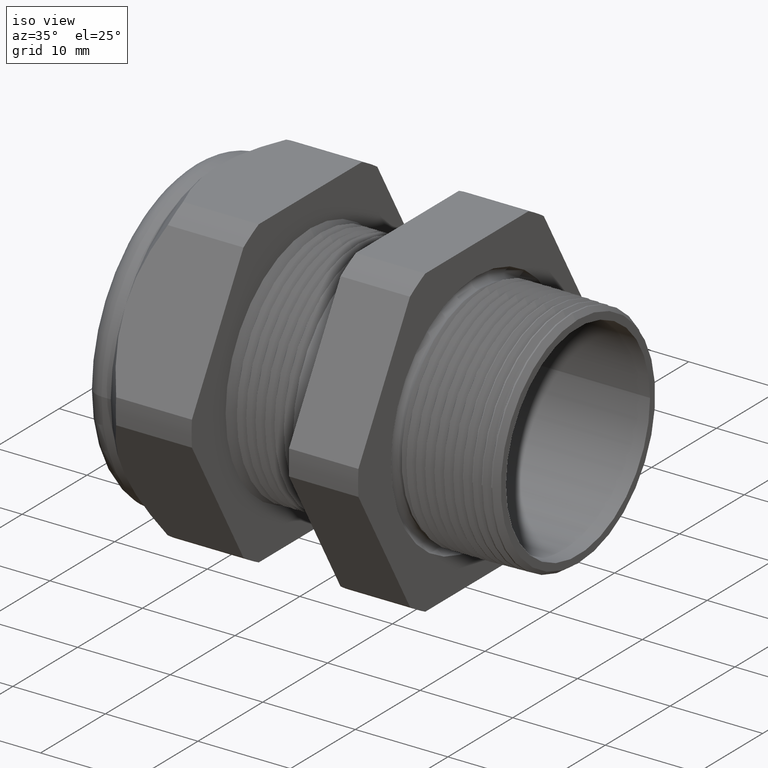
[diagram: clean part render]
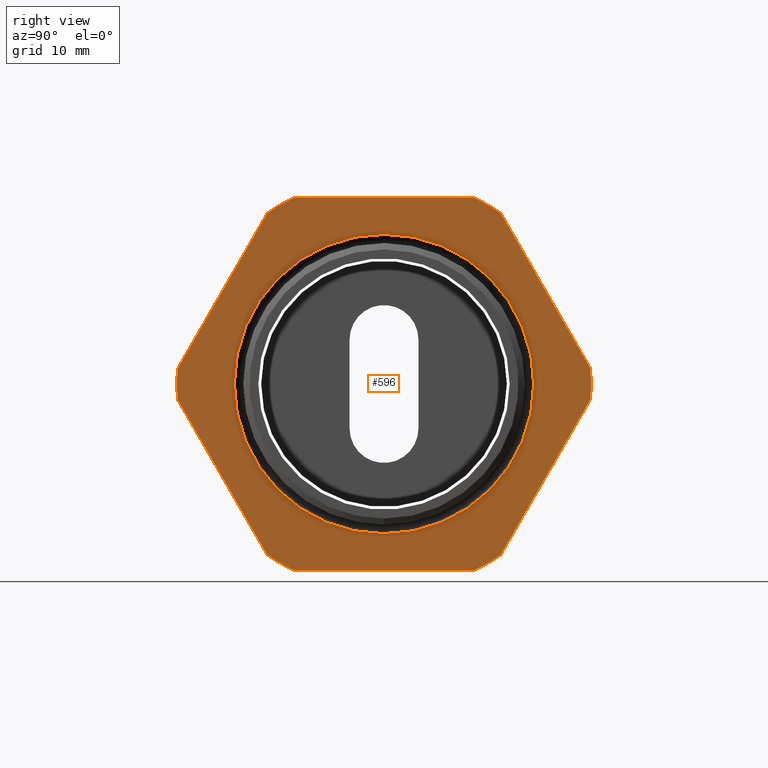
[diagram: tour spotlight — one face highlighted and labeled with its STEP entity id]
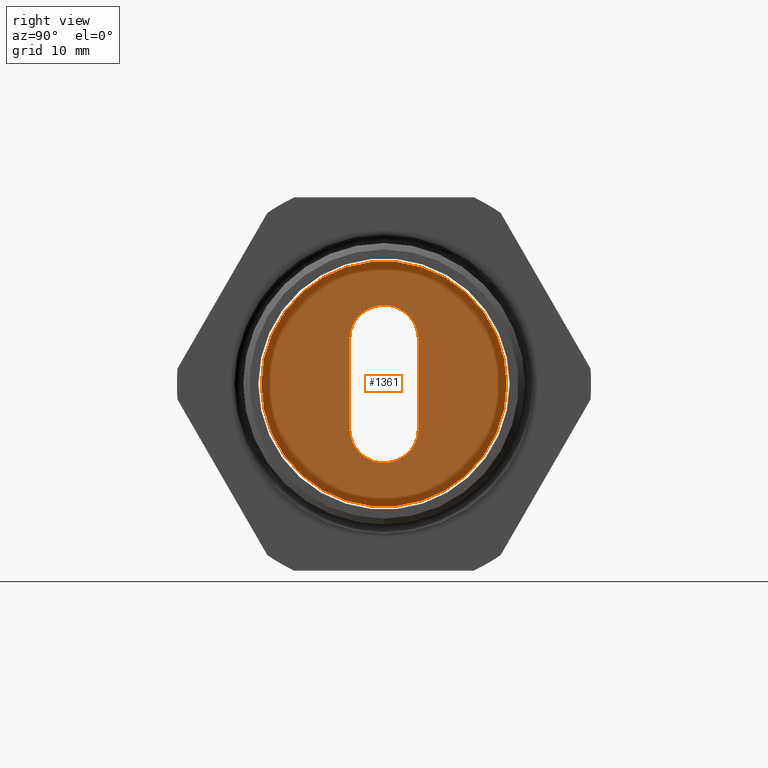
[diagram: tour spotlight — one face highlighted and labeled with its STEP entity id]
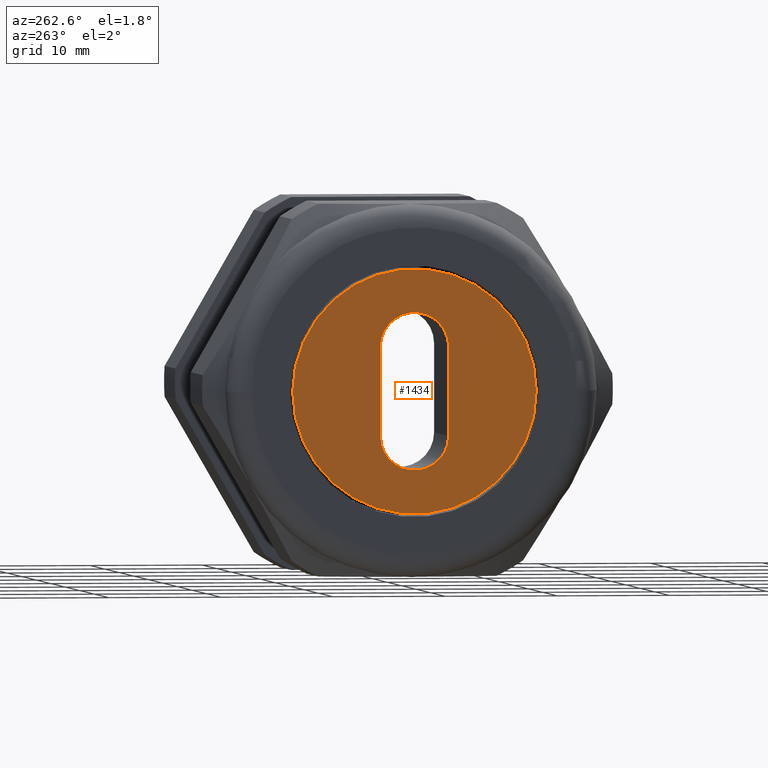
[diagram: tour spotlight — one face highlighted and labeled with its STEP entity id]
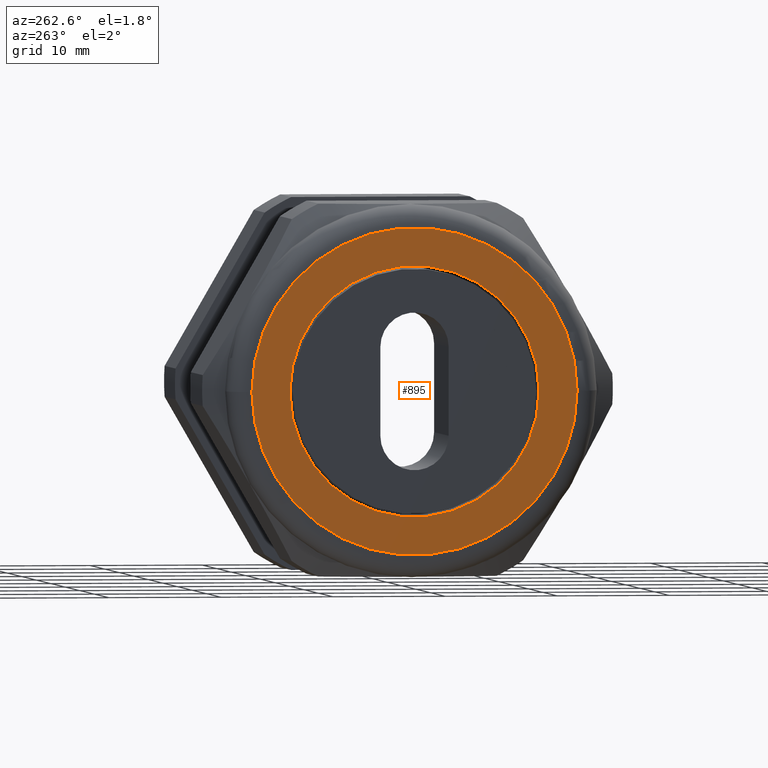
[diagram: tour spotlight — one face highlighted and labeled with its STEP entity id]
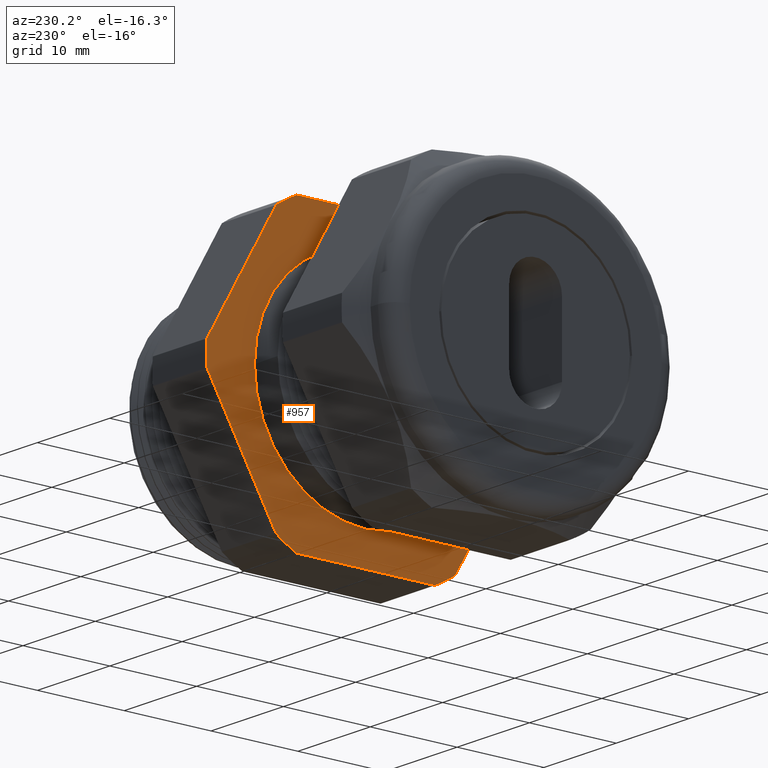
[diagram: tour spotlight — one face highlighted and labeled with its STEP entity id]
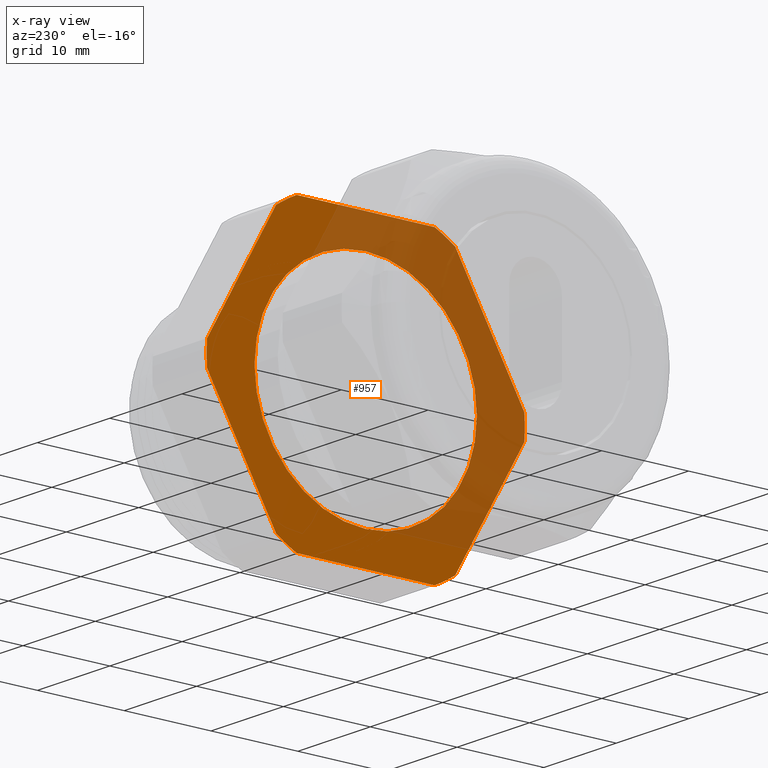
[diagram: x-ray of the same camera — body ghosted, this tour face saturated]
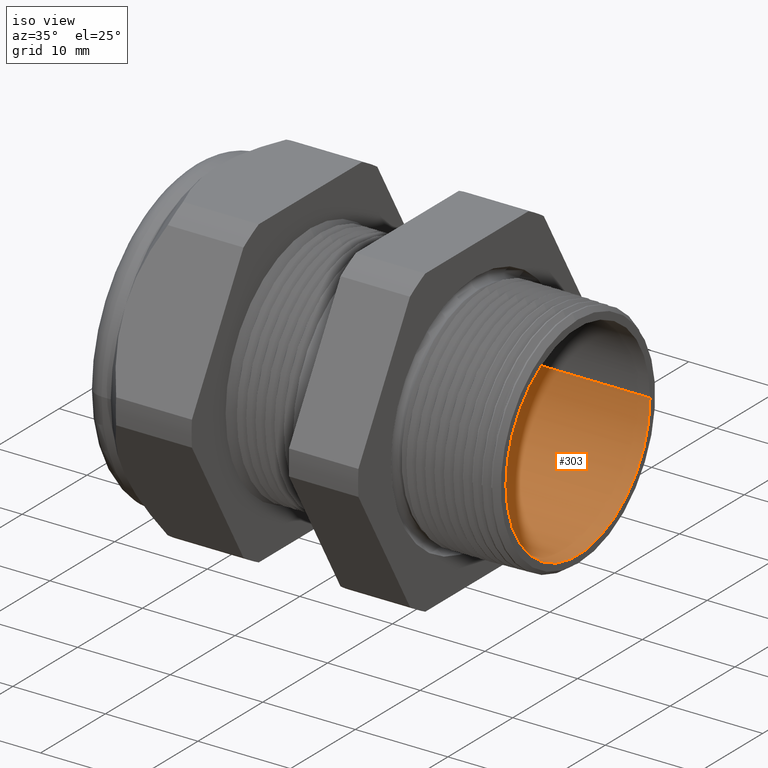
[diagram: tour spotlight — one face highlighted and labeled with its STEP entity id]
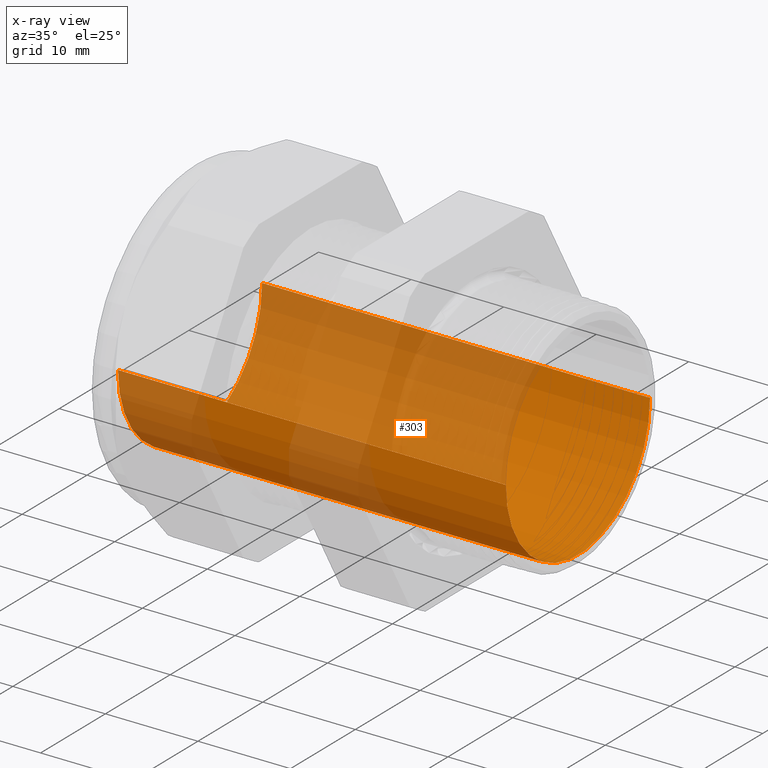
[diagram: x-ray of the same camera — body ghosted, this tour face saturated]
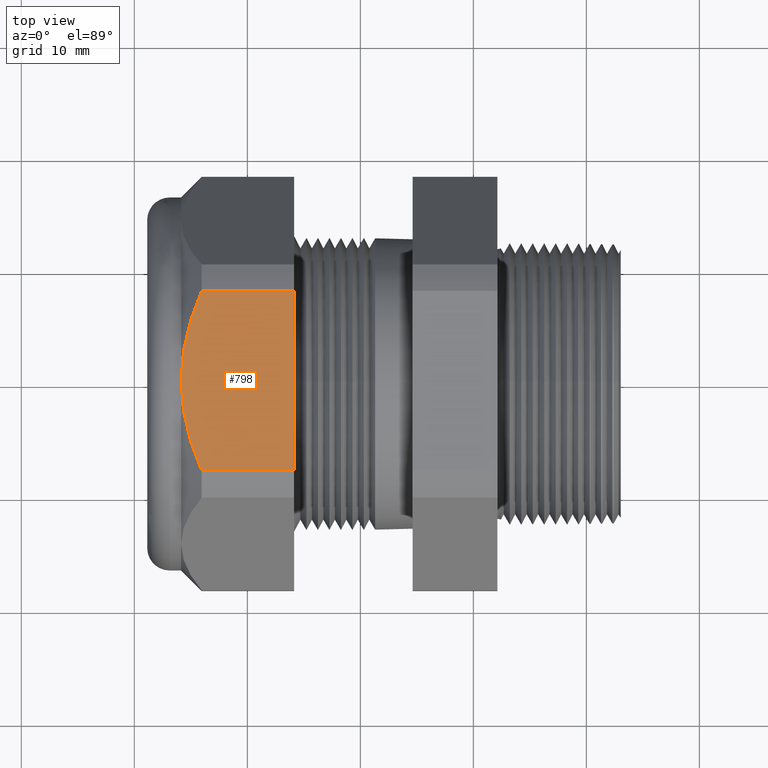
[diagram: tour spotlight — one face highlighted and labeled with its STEP entity id]
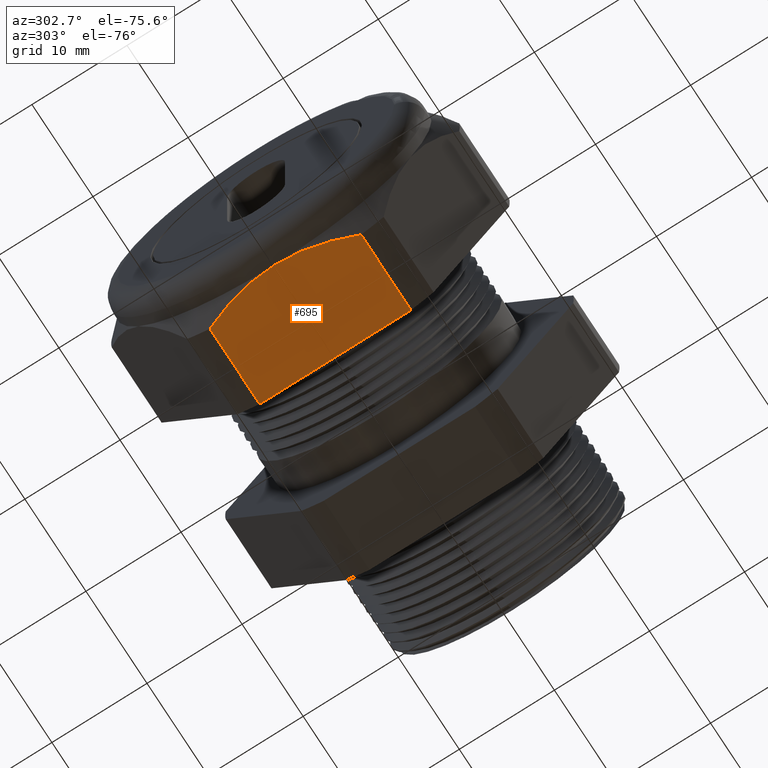
[diagram: tour spotlight — one face highlighted and labeled with its STEP entity id]
A machine part: a face-by-face anatomy tour. The part has 139 B-rep faces; the first image is the clean iso view, then the 8 largest visible faces are spotlighted one at a time (largest first), each with its STEP entity span.

Face 1 — right view, entity #596. In plain terms, the highlighted planar face has unit normal (1, -0, -0).
Definition (entity closure, byte-faithful):
#198 = VERTEX_POINT ( 'NONE', #1812 ) ;
#215 = VERTEX_POINT ( 'NONE', #1838 ) ;
#257 = EDGE_CURVE ( 'NONE', #198, #215, #1950, .T. ) ;
#509 = ORIENTED_EDGE ( 'NONE', *, *, #635, .T. ) ;
#590 = VERTEX_POINT ( 'NONE', #2607 ) ;
#591 = ORIENTED_EDGE ( 'NONE', *, *, #592, .T. ) ;
#592 = EDGE_CURVE ( 'NONE', #590, #649, #2606, .T. ) ;
#596 = ADVANCED_FACE ( 'NONE', ( #2597, #2596 ), #2595, .T. ) ;
#597 = EDGE_LOOP ( 'NONE', ( #598, #602, #605, #664, #667, #670, #673, #591, #650, #653, #656, #659 ) ) ;
#598 = ORIENTED_EDGE ( 'NONE', *, *, #599, .T. ) ;
#599 = EDGE_CURVE ( 'NONE', #600, #601, #2593, .T. ) ;
#600 = VERTEX_POINT ( 'NONE', #2586 ) ;
#601 = VERTEX_POINT ( 'NONE', #2585 ) ;
#602 = ORIENTED_EDGE ( 'NONE', *, *, #603, .T. ) ;
#603 = EDGE_CURVE ( 'NONE', #601, #604, #2646, .T. ) ;
#604 = VERTEX_POINT ( 'NONE', #2641 ) ;
#605 = ORIENTED_EDGE ( 'NONE', *, *, #606, .T. ) ;
#606 = EDGE_CURVE ( 'NONE', #604, #663, #2640, .T. ) ;
#635 = EDGE_CURVE ( 'NONE', #215, #198, #2709, .T. ) ;
#649 = VERTEX_POINT ( 'NONE', #2682 ) ;
#650 = ORIENTED_EDGE ( 'NONE', *, *, #651, .T. ) ;
#651 = EDGE_CURVE ( 'NONE', #649, #652, #2680, .T. ) ;
#652 = VERTEX_POINT ( 'NONE', #2739 ) ;
#653 = ORIENTED_EDGE ( 'NONE', *, *, #654, .T. ) ;
#654 = EDGE_CURVE ( 'NONE', #652, #655, #2738, .T. ) ;
#655 = VERTEX_POINT ( 'NONE', #2733 ) ;
#656 = ORIENTED_EDGE ( 'NONE', *, *, #657, .T. ) ;
#657 = EDGE_CURVE ( 'NONE', #655, #658, #2732, .T. ) ;
#658 = VERTEX_POINT ( 'NONE', #2728 ) ;
#659 = ORIENTED_EDGE ( 'NONE', *, *, #660, .T. ) ;
#660 = EDGE_CURVE ( 'NONE', #658, #600, #2727, .T. ) ;
#661 = EDGE_LOOP ( 'NONE', ( #662, #509 ) ) ;
#662 = ORIENTED_EDGE ( 'NONE', *, *, #257, .T. ) ;
#663 = VERTEX_POINT ( 'NONE', #2722 ) ;
#664 = ORIENTED_EDGE ( 'NONE', *, *, #665, .T. ) ;
#665 = EDGE_CURVE ( 'NONE', #663, #666, #2721, .T. ) ;
#666 = VERTEX_POINT ( 'NONE', #2716 ) ;
#667 = ORIENTED_EDGE ( 'NONE', *, *, #668, .T. ) ;
#668 = EDGE_CURVE ( 'NONE', #666, #669, #2715, .T. ) ;
#669 = VERTEX_POINT ( 'NONE', #2711 ) ;
#670 = ORIENTED_EDGE ( 'NONE', *, *, #671, .T. ) ;
#671 = EDGE_CURVE ( 'NONE', #669, #672, #2765, .T. ) ;
#672 = VERTEX_POINT ( 'NONE', #2760 ) ;
#673 = ORIENTED_EDGE ( 'NONE', *, *, #674, .T. ) ;
#674 = EDGE_CURVE ( 'NONE', #672, #590, #2759, .T. ) ;
#1812 = CARTESIAN_POINT ( 'NONE',  ( -0.3100000000000000500, 1.052269570902439300E-049, -0.5214554190084089700 ) ) ;
#1838 = CARTESIAN_POINT ( 'NONE',  ( -0.3100000000000000500, 6.385987097866900100E-017, 0.5214554190084089700 ) ) ;
#1934 = DIRECTION ( 'NONE',  ( 1.874515102111105700E-017, 0.5000000000000002200, -0.8660254037844386000 ) ) ;
#1946 = DIRECTION ( 'NONE',  ( 0.0000000000000000000, 1.000000000000000000, 0.0000000000000000000 ) ) ;
#1947 = DIRECTION ( 'NONE',  ( -1.000000000000000000, 3.749030204222210100E-017, 0.0000000000000000000 ) ) ;
#1948 = CARTESIAN_POINT ( 'NONE',  ( -0.3100000000000000500, 1.827179571382155700E-033, 0.0000000000000000000 ) ) ;
#1949 = AXIS2_PLACEMENT_3D ( 'NONE', #1948, #1947, #1946 ) ;
#1950 = CIRCLE ( 'NONE', #1949, 0.5214554190084089700 ) ;
#2585 = CARTESIAN_POINT ( 'NONE',  ( -0.3100000000000000000, 0.7194909755756818700, -0.05380507471562087600 ) ) ;
#2586 = CARTESIAN_POINT ( 'NONE',  ( -0.3100000000000000000, 0.4063420493440886800, -0.5961949252843790100 ) ) ;
#2587 = DIRECTION ( 'NONE',  ( 1.874515102111104400E-017, 0.4999999999999998300, 0.8660254037844388200 ) ) ;
#2588 = VECTOR ( 'NONE', #2587, 39.37007874015748100 ) ;
#2589 = CARTESIAN_POINT ( 'NONE',  ( -0.3100000000000000000, 0.8879165124598850100, 0.2379165124598851000 ) ) ;
#2590 = DIRECTION ( 'NONE',  ( 3.749030204222210100E-017, 1.000000000000000000, 0.0000000000000000000 ) ) ;
#2591 = DIRECTION ( 'NONE',  ( 1.000000000000000000, -3.749030204222210100E-017, -0.0000000000000000000 ) ) ;
#2592 = AXIS2_PLACEMENT_3D ( 'NONE', #2594, #2591, #2590 ) ;
#2593 = LINE ( 'NONE', #2589, #2588 ) ;
#2594 = CARTESIAN_POINT ( 'NONE',  ( -0.3100000000000000000, 1.300000000000000000, 0.0000000000000000000 ) ) ;
#2595 = PLANE ( 'NONE',  #2592 ) ;
#2596 = FACE_BOUND ( 'NONE', #661, .T. ) ;
#2597 = FACE_OUTER_BOUND ( 'NONE', #597, .T. ) ;
#2602 = DIRECTION ( 'NONE',  ( 0.0000000000000000000, 1.000000000000000000, 0.0000000000000000000 ) ) ;
#2603 = DIRECTION ( 'NONE',  ( 1.000000000000000000, -3.749030204222210100E-017, -0.0000000000000000000 ) ) ;
#2604 = CARTESIAN_POINT ( 'NONE',  ( -0.3100000000000000500, 5.293217369441609100E-017, 0.0000000000000000000 ) ) ;
#2605 = AXIS2_PLACEMENT_3D ( 'NONE', #2604, #2603, #2602 ) ;
#2606 = CIRCLE ( 'NONE', #2605, 0.7215000000000002500 ) ;
#2607 = CARTESIAN_POINT ( 'NONE',  ( -0.3100000000000000500, -0.7194909755756820900, 0.05380507471562026600 ) ) ;
#2637 = DIRECTION ( 'NONE',  ( -1.874515102111105700E-017, -0.5000000000000002200, 0.8660254037844386000 ) ) ;
#2638 = VECTOR ( 'NONE', #2637, 39.37007874015747400 ) ;
#2639 = CARTESIAN_POINT ( 'NONE',  ( -0.3100000000000000000, 0.8879165124598855700, -0.2379165124598849900 ) ) ;
#2640 = LINE ( 'NONE', #2639, #2638 ) ;
#2641 = CARTESIAN_POINT ( 'NONE',  ( -0.3100000000000000000, 0.7194909755756818700, 0.05380507471562172300 ) ) ;
#2642 = DIRECTION ( 'NONE',  ( 0.0000000000000000000, 1.000000000000000000, 0.0000000000000000000 ) ) ;
#2643 = DIRECTION ( 'NONE',  ( 1.000000000000000000, -3.749030204222210100E-017, -0.0000000000000000000 ) ) ;
#2644 = CARTESIAN_POINT ( 'NONE',  ( -0.3100000000000000500, 5.293217369441609100E-017, 0.0000000000000000000 ) ) ;
#2645 = AXIS2_PLACEMENT_3D ( 'NONE', #2644, #2643, #2642 ) ;
#2646 = CIRCLE ( 'NONE', #2645, 0.7214999999999999200 ) ;
#2678 = VECTOR ( 'NONE', #1934, 39.37007874015747400 ) ;
#2679 = CARTESIAN_POINT ( 'NONE',  ( -0.3100000000000000500, -0.2379165124598849900, -0.8879165124598854500 ) ) ;
#2680 = LINE ( 'NONE', #2679, #2678 ) ;
#2682 = CARTESIAN_POINT ( 'NONE',  ( -0.3100000000000000500, -0.7194909755756819800, -0.05380507471562112600 ) ) ;
#2705 = DIRECTION ( 'NONE',  ( 0.0000000000000000000, 1.000000000000000000, 0.0000000000000000000 ) ) ;
#2706 = DIRECTION ( 'NONE',  ( -1.000000000000000000, 3.749030204222210100E-017, 0.0000000000000000000 ) ) ;
#2707 = CARTESIAN_POINT ( 'NONE',  ( -0.3100000000000000500, 1.827179571382155700E-033, 0.0000000000000000000 ) ) ;
#2708 = AXIS2_PLACEMENT_3D ( 'NONE', #2707, #2706, #2705 ) ;
#2709 = CIRCLE ( 'NONE', #2708, 0.5214554190084089700 ) ;
#2711 = CARTESIAN_POINT ( 'NONE',  ( -0.3100000000000000500, -0.3131489262315936800, 0.6500000000000000200 ) ) ;
#2712 = DIRECTION ( 'NONE',  ( -3.749030204222210100E-017, -1.000000000000000000, 0.0000000000000000000 ) ) ;
#2713 = VECTOR ( 'NONE', #2712, 39.37007874015748100 ) ;
#2714 = CARTESIAN_POINT ( 'NONE',  ( -0.3100000000000000000, 1.300000000000000000, 0.6500000000000000200 ) ) ;
#2715 = LINE ( 'NONE', #2714, #2713 ) ;
#2716 = CARTESIAN_POINT ( 'NONE',  ( -0.3100000000000000500, 0.3131489262315935700, 0.6500000000000000200 ) ) ;
#2717 = DIRECTION ( 'NONE',  ( 0.0000000000000000000, 1.000000000000000000, 0.0000000000000000000 ) ) ;
#2718 = DIRECTION ( 'NONE',  ( 1.000000000000000000, -3.749030204222210100E-017, -0.0000000000000000000 ) ) ;
#2719 = CARTESIAN_POINT ( 'NONE',  ( -0.3100000000000000500, 5.293217369441609100E-017, 0.0000000000000000000 ) ) ;
#2720 = AXIS2_PLACEMENT_3D ( 'NONE', #2719, #2718, #2717 ) ;
#2721 = CIRCLE ( 'NONE', #2720, 0.7215000000000000300 ) ;
#2722 = CARTESIAN_POINT ( 'NONE',  ( -0.3100000000000000500, 0.4063420493440889600, 0.5961949252843789000 ) ) ;
#2723 = DIRECTION ( 'NONE',  ( 0.0000000000000000000, 1.000000000000000000, 0.0000000000000000000 ) ) ;
#2724 = DIRECTION ( 'NONE',  ( 1.000000000000000000, -3.749030204222210100E-017, -0.0000000000000000000 ) ) ;
#2725 = CARTESIAN_POINT ( 'NONE',  ( -0.3100000000000000500, 5.293217369441609100E-017, 0.0000000000000000000 ) ) ;
#2726 = AXIS2_PLACEMENT_3D ( 'NONE', #2725, #2724, #2723 ) ;
#2727 = CIRCLE ( 'NONE', #2726, 0.7215000000000000300 ) ;
#2728 = CARTESIAN_POINT ( 'NONE',  ( -0.3100000000000000500, 0.3131489262315937400, -0.6500000000000000200 ) ) ;
#2729 = DIRECTION ( 'NONE',  ( 3.749030204222210100E-017, 1.000000000000000000, 0.0000000000000000000 ) ) ;
#2730 = VECTOR ( 'NONE', #2729, 39.37007874015748100 ) ;
#2731 = CARTESIAN_POINT ( 'NONE',  ( -0.3100000000000000000, 1.300000000000000000, -0.6500000000000000200 ) ) ;
#2732 = LINE ( 'NONE', #2731, #2730 ) ;
#2733 = CARTESIAN_POINT ( 'NONE',  ( -0.3100000000000000500, -0.3131489262315936800, -0.6500000000000000200 ) ) ;
#2734 = DIRECTION ( 'NONE',  ( 0.0000000000000000000, 1.000000000000000000, 0.0000000000000000000 ) ) ;
#2735 = DIRECTION ( 'NONE',  ( 1.000000000000000000, -3.749030204222210100E-017, -0.0000000000000000000 ) ) ;
#2736 = CARTESIAN_POINT ( 'NONE',  ( -0.3100000000000000500, 5.293217369441609100E-017, 0.0000000000000000000 ) ) ;
#2737 = AXIS2_PLACEMENT_3D ( 'NONE', #2736, #2735, #2734 ) ;
#2738 = CIRCLE ( 'NONE', #2737, 0.7215000000000000300 ) ;
#2739 = CARTESIAN_POINT ( 'NONE',  ( -0.3100000000000000500, -0.4063420493440883000, -0.5961949252843792300 ) ) ;
#2756 = DIRECTION ( 'NONE',  ( -1.874515102111104400E-017, -0.4999999999999998300, -0.8660254037844388200 ) ) ;
#2757 = VECTOR ( 'NONE', #2756, 39.37007874015748100 ) ;
#2758 = CARTESIAN_POINT ( 'NONE',  ( -0.3100000000000000500, -0.2379165124598852700, 0.8879165124598849000 ) ) ;
#2759 = LINE ( 'NONE', #2758, #2757 ) ;
#2760 = CARTESIAN_POINT ( 'NONE',  ( -0.3100000000000000500, -0.4063420493440884600, 0.5961949252843791200 ) ) ;
#2761 = DIRECTION ( 'NONE',  ( 0.0000000000000000000, 1.000000000000000000, 0.0000000000000000000 ) ) ;
#2762 = DIRECTION ( 'NONE',  ( 1.000000000000000000, -3.749030204222210100E-017, -0.0000000000000000000 ) ) ;
#2763 = CARTESIAN_POINT ( 'NONE',  ( -0.3100000000000000500, 5.293217369441609100E-017, 0.0000000000000000000 ) ) ;
#2764 = AXIS2_PLACEMENT_3D ( 'NONE', #2763, #2762, #2761 ) ;
#2765 = CIRCLE ( 'NONE', #2764, 0.7215000000000000300 ) ;

Face 2 — right view, entity #1361. In plain terms, the highlighted planar face has unit normal (-1, 0, 0).
Definition (entity closure, byte-faithful):
#1356 = EDGE_CURVE ( 'NONE', #1429, #1428, #3875, .T. ) ;
#1360 = EDGE_LOOP ( 'NONE', ( #1362, #1366, #1369, #1372 ) ) ;
#1361 = ADVANCED_FACE ( 'NONE', ( #3866, #3865 ), #3864, .F. ) ;
#1362 = ORIENTED_EDGE ( 'NONE', *, *, #1363, .T. ) ;
#1363 = EDGE_CURVE ( 'NONE', #1364, #1365, #3859, .T. ) ;
#1364 = VERTEX_POINT ( 'NONE', #3855 ) ;
#1365 = VERTEX_POINT ( 'NONE', #3854 ) ;
#1366 = ORIENTED_EDGE ( 'NONE', *, *, #1367, .T. ) ;
#1367 = EDGE_CURVE ( 'NONE', #1365, #1368, #3853, .T. ) ;
#1368 = VERTEX_POINT ( 'NONE', #3910 ) ;
#1369 = ORIENTED_EDGE ( 'NONE', *, *, #1370, .T. ) ;
#1370 = EDGE_CURVE ( 'NONE', #1368, #1371, #3909, .T. ) ;
#1371 = VERTEX_POINT ( 'NONE', #3905 ) ;
#1372 = ORIENTED_EDGE ( 'NONE', *, *, #1373, .T. ) ;
#1373 = EDGE_CURVE ( 'NONE', #1371, #1364, #3904, .T. ) ;
#1427 = EDGE_CURVE ( 'NONE', #1428, #1429, #3960, .T. ) ;
#1428 = VERTEX_POINT ( 'NONE', #3955 ) ;
#1429 = VERTEX_POINT ( 'NONE', #3954 ) ;
#1443 = EDGE_LOOP ( 'NONE', ( #1444, #1445 ) ) ;
#1444 = ORIENTED_EDGE ( 'NONE', *, *, #1427, .F. ) ;
#1445 = ORIENTED_EDGE ( 'NONE', *, *, #1356, .F. ) ;
#3853 = CIRCLE ( 'NONE', #3914, 0.1200000000000000000 ) ;
#3854 = CARTESIAN_POINT ( 'NONE',  ( -1.136299212598424800, 0.1200000000000000400, -0.1550000000000000500 ) ) ;
#3855 = CARTESIAN_POINT ( 'NONE',  ( -1.136299212598424800, 0.1200000000000000400, 0.1550000000000000500 ) ) ;
#3856 = DIRECTION ( 'NONE',  ( -0.0000000000000000000, -0.0000000000000000000, -1.000000000000000000 ) ) ;
#3857 = VECTOR ( 'NONE', #3856, 39.37007874015748100 ) ;
#3858 = CARTESIAN_POINT ( 'NONE',  ( -1.136299212598424800, 0.1200000000000000400, -0.1550000000000000500 ) ) ;
#3859 = LINE ( 'NONE', #3858, #3857 ) ;
#3860 = DIRECTION ( 'NONE',  ( -3.749030204222210100E-017, -1.000000000000000000, 0.0000000000000000000 ) ) ;
#3861 = DIRECTION ( 'NONE',  ( -1.000000000000000000, 3.749030204222210100E-017, 0.0000000000000000000 ) ) ;
#3862 = AXIS2_PLACEMENT_3D ( 'NONE', #3863, #3861, #3860 ) ;
#3863 = CARTESIAN_POINT ( 'NONE',  ( -1.136299212598424800, 4.260020069065409400E-017, 0.0000000000000000000 ) ) ;
#3864 = PLANE ( 'NONE',  #3862 ) ;
#3865 = FACE_OUTER_BOUND ( 'NONE', #1443, .T. ) ;
#3866 = FACE_BOUND ( 'NONE', #1360, .T. ) ;
#3871 = DIRECTION ( 'NONE',  ( 0.0000000000000000000, -1.000000000000000000, 0.0000000000000000000 ) ) ;
#3872 = DIRECTION ( 'NONE',  ( -1.000000000000000000, 3.749030204222210100E-017, 0.0000000000000000000 ) ) ;
#3873 = CARTESIAN_POINT ( 'NONE',  ( -1.136299212598424800, 4.260020069065409400E-017, 0.0000000000000000000 ) ) ;
#3874 = AXIS2_PLACEMENT_3D ( 'NONE', #3873, #3872, #3871 ) ;
#3875 = CIRCLE ( 'NONE', #3874, 0.4277499999999995800 ) ;
#3900 = DIRECTION ( 'NONE',  ( 0.0000000000000000000, 1.000000000000000000, 0.0000000000000000000 ) ) ;
#3901 = DIRECTION ( 'NONE',  ( -1.000000000000000000, 3.749030204222210100E-017, 0.0000000000000000000 ) ) ;
#3902 = CARTESIAN_POINT ( 'NONE',  ( -1.136299212598424800, 4.270088148622307100E-017, 0.1550000000000000500 ) ) ;
#3903 = AXIS2_PLACEMENT_3D ( 'NONE', #3902, #3901, #3900 ) ;
#3904 = CIRCLE ( 'NONE', #3903, 0.1200000000000000000 ) ;
#3905 = CARTESIAN_POINT ( 'NONE',  ( -1.136299212598424800, -0.1199999999999999700, 0.1550000000000000500 ) ) ;
#3906 = DIRECTION ( 'NONE',  ( 0.0000000000000000000, 0.0000000000000000000, 1.000000000000000000 ) ) ;
#3907 = VECTOR ( 'NONE', #3906, 39.37007874015748100 ) ;
#3908 = CARTESIAN_POINT ( 'NONE',  ( -1.136299212598424800, -0.1199999999999999700, -0.1550000000000000500 ) ) ;
#3909 = LINE ( 'NONE', #3908, #3907 ) ;
#3910 = CARTESIAN_POINT ( 'NONE',  ( -1.136299212598424800, -0.1199999999999999700, -0.1550000000000000500 ) ) ;
#3911 = DIRECTION ( 'NONE',  ( 0.0000000000000000000, -1.000000000000000000, 0.0000000000000000000 ) ) ;
#3912 = DIRECTION ( 'NONE',  ( -1.000000000000000000, 3.749030204222210100E-017, 0.0000000000000000000 ) ) ;
#3913 = CARTESIAN_POINT ( 'NONE',  ( -1.136299212598424800, 4.260020069065409400E-017, -0.1550000000000000500 ) ) ;
#3914 = AXIS2_PLACEMENT_3D ( 'NONE', #3913, #3912, #3911 ) ;
#3954 = CARTESIAN_POINT ( 'NONE',  ( -1.136299212598424800, 0.4277499999999996300, 5.238426683352798200E-017 ) ) ;
#3955 = CARTESIAN_POINT ( 'NONE',  ( -1.136299212598424800, -0.4277499999999994600, 0.0000000000000000000 ) ) ;
#3956 = DIRECTION ( 'NONE',  ( 0.0000000000000000000, -1.000000000000000000, 0.0000000000000000000 ) ) ;
#3957 = DIRECTION ( 'NONE',  ( -1.000000000000000000, 3.749030204222210100E-017, 0.0000000000000000000 ) ) ;
#3958 = CARTESIAN_POINT ( 'NONE',  ( -1.136299212598424800, 4.260020069065409400E-017, 0.0000000000000000000 ) ) ;
#3959 = AXIS2_PLACEMENT_3D ( 'NONE', #3958, #3957, #3956 ) ;
#3960 = CIRCLE ( 'NONE', #3959, 0.4277499999999995800 ) ;

Face 3 — auxiliary view, entity #1434. In plain terms, the highlighted planar face has unit normal (-1, 0, 0).
Definition (entity closure, byte-faithful):
#1359 = EDGE_CURVE ( 'NONE', #1432, #1488, #3870, .T. ) ;
#1386 = ORIENTED_EDGE ( 'NONE', *, *, #1387, .F. ) ;
#1387 = EDGE_CURVE ( 'NONE', #1438, #1461, #3887, .T. ) ;
#1388 = EDGE_LOOP ( 'NONE', ( #1389, #1390 ) ) ;
#1389 = ORIENTED_EDGE ( 'NONE', *, *, #1487, .T. ) ;
#1390 = ORIENTED_EDGE ( 'NONE', *, *, #1359, .T. ) ;
#1432 = VERTEX_POINT ( 'NONE', #3949 ) ;
#1434 = ADVANCED_FACE ( 'NONE', ( #3948, #3947 ), #3946, .T. ) ;
#1435 = ORIENTED_EDGE ( 'NONE', *, *, #1436, .F. ) ;
#1436 = EDGE_CURVE ( 'NONE', #1437, #1438, #4003, .T. ) ;
#1437 = VERTEX_POINT ( 'NONE', #3998 ) ;
#1438 = VERTEX_POINT ( 'NONE', #3997 ) ;
#1439 = ORIENTED_EDGE ( 'NONE', *, *, #1440, .F. ) ;
#1440 = EDGE_CURVE ( 'NONE', #1441, #1437, #3996, .T. ) ;
#1441 = VERTEX_POINT ( 'NONE', #3992 ) ;
#1442 = ORIENTED_EDGE ( 'NONE', *, *, #1460, .F. ) ;
#1446 = EDGE_LOOP ( 'NONE', ( #1435, #1439, #1442, #1386 ) ) ;
#1460 = EDGE_CURVE ( 'NONE', #1461, #1441, #4029, .T. ) ;
#1461 = VERTEX_POINT ( 'NONE', #4020 ) ;
#1487 = EDGE_CURVE ( 'NONE', #1488, #1432, #4019, .T. ) ;
#1488 = VERTEX_POINT ( 'NONE', #4014 ) ;
#3867 = DIRECTION ( 'NONE',  ( 0.0000000000000000000, -1.000000000000000000, 0.0000000000000000000 ) ) ;
#3868 = DIRECTION ( 'NONE',  ( -1.000000000000000000, 3.749030204222210100E-017, 0.0000000000000000000 ) ) ;
#3869 = AXIS2_PLACEMENT_3D ( 'NONE', #3876, #3868, #3867 ) ;
#3870 = CIRCLE ( 'NONE', #3869, 0.4277499999999995800 ) ;
#3876 = CARTESIAN_POINT ( 'NONE',  ( -1.529999999999999800, 5.736016212459981000E-017, 0.0000000000000000000 ) ) ;
#3884 = DIRECTION ( 'NONE',  ( 0.0000000000000000000, 0.0000000000000000000, 1.000000000000000000 ) ) ;
#3885 = VECTOR ( 'NONE', #3884, 39.37007874015748100 ) ;
#3886 = CARTESIAN_POINT ( 'NONE',  ( -1.529999999999999800, -0.1199999999999999500, -0.1550000000000000500 ) ) ;
#3887 = LINE ( 'NONE', #3886, #3885 ) ;
#3945 = AXIS2_PLACEMENT_3D ( 'NONE', #4006, #4005, #4004 ) ;
#3946 = PLANE ( 'NONE',  #3945 ) ;
#3947 = FACE_OUTER_BOUND ( 'NONE', #1388, .T. ) ;
#3948 = FACE_BOUND ( 'NONE', #1446, .T. ) ;
#3949 = CARTESIAN_POINT ( 'NONE',  ( -1.529999999999999800, 0.4277499999999996300, 5.238426683352798200E-017 ) ) ;
#3992 = CARTESIAN_POINT ( 'NONE',  ( -1.529999999999999800, 0.1200000000000000500, 0.1550000000000000500 ) ) ;
#3993 = DIRECTION ( 'NONE',  ( -0.0000000000000000000, -0.0000000000000000000, -1.000000000000000000 ) ) ;
#3994 = VECTOR ( 'NONE', #3993, 39.37007874015748100 ) ;
#3995 = CARTESIAN_POINT ( 'NONE',  ( -1.529999999999999800, 0.1200000000000000500, -0.1550000000000000500 ) ) ;
#3996 = LINE ( 'NONE', #3995, #3994 ) ;
#3997 = CARTESIAN_POINT ( 'NONE',  ( -1.529999999999999800, -0.1199999999999999500, -0.1550000000000000500 ) ) ;
#3998 = CARTESIAN_POINT ( 'NONE',  ( -1.529999999999999800, 0.1200000000000000500, -0.1550000000000000500 ) ) ;
#3999 = DIRECTION ( 'NONE',  ( 0.0000000000000000000, -1.000000000000000000, 0.0000000000000000000 ) ) ;
#4000 = DIRECTION ( 'NONE',  ( -1.000000000000000000, 3.749030204222210100E-017, 0.0000000000000000000 ) ) ;
#4001 = CARTESIAN_POINT ( 'NONE',  ( -1.529999999999999800, 5.736016212459981000E-017, -0.1550000000000000500 ) ) ;
#4002 = AXIS2_PLACEMENT_3D ( 'NONE', #4001, #4000, #3999 ) ;
#4003 = CIRCLE ( 'NONE', #4002, 0.1200000000000000000 ) ;
#4004 = DIRECTION ( 'NONE',  ( -3.749030204222210100E-017, -1.000000000000000000, 0.0000000000000000000 ) ) ;
#4005 = DIRECTION ( 'NONE',  ( -1.000000000000000000, 3.749030204222210100E-017, 0.0000000000000000000 ) ) ;
#4006 = CARTESIAN_POINT ( 'NONE',  ( -1.529999999999999800, 5.736016212459981000E-017, 0.0000000000000000000 ) ) ;
#4014 = CARTESIAN_POINT ( 'NONE',  ( -1.529999999999999800, -0.4277499999999994600, 0.0000000000000000000 ) ) ;
#4015 = DIRECTION ( 'NONE',  ( 0.0000000000000000000, -1.000000000000000000, 0.0000000000000000000 ) ) ;
#4016 = DIRECTION ( 'NONE',  ( -1.000000000000000000, 3.749030204222210100E-017, 0.0000000000000000000 ) ) ;
#4017 = CARTESIAN_POINT ( 'NONE',  ( -1.529999999999999800, 5.736016212459981000E-017, 0.0000000000000000000 ) ) ;
#4018 = AXIS2_PLACEMENT_3D ( 'NONE', #4017, #4016, #4015 ) ;
#4019 = CIRCLE ( 'NONE', #4018, 0.4277499999999995800 ) ;
#4020 = CARTESIAN_POINT ( 'NONE',  ( -1.529999999999999800, -0.1199999999999999500, 0.1550000000000000500 ) ) ;
#4021 = DIRECTION ( 'NONE',  ( 0.0000000000000000000, 1.000000000000000000, 0.0000000000000000000 ) ) ;
#4022 = DIRECTION ( 'NONE',  ( -1.000000000000000000, 3.749030204222210100E-017, 0.0000000000000000000 ) ) ;
#4023 = CARTESIAN_POINT ( 'NONE',  ( -1.529999999999999800, 5.746084292016878700E-017, 0.1550000000000000500 ) ) ;
#4024 = AXIS2_PLACEMENT_3D ( 'NONE', #4023, #4022, #4021 ) ;
#4029 = CIRCLE ( 'NONE', #4024, 0.1200000000000000000 ) ;

Face 4 — auxiliary view, entity #895. In plain terms, the highlighted planar face has unit normal (-1, 0, 0).
Definition (entity closure, byte-faithful):
#202 = VERTEX_POINT ( 'NONE', #1809 ) ;
#205 = EDGE_CURVE ( 'NONE', #206, #202, #1864, .T. ) ;
#206 = VERTEX_POINT ( 'NONE', #1859 ) ;
#306 = EDGE_CURVE ( 'NONE', #307, #308, #2043, .T. ) ;
#307 = VERTEX_POINT ( 'NONE', #2034 ) ;
#308 = VERTEX_POINT ( 'NONE', #2033 ) ;
#853 = EDGE_CURVE ( 'NONE', #308, #307, #3162, .T. ) ;
#895 = ADVANCED_FACE ( 'NONE', ( #3196, #3195 ), #3202, .T. ) ;
#896 = EDGE_LOOP ( 'NONE', ( #897, #898 ) ) ;
#897 = ORIENTED_EDGE ( 'NONE', *, *, #205, .T. ) ;
#898 = ORIENTED_EDGE ( 'NONE', *, *, #899, .T. ) ;
#899 = EDGE_CURVE ( 'NONE', #202, #206, #3250, .T. ) ;
#900 = EDGE_LOOP ( 'NONE', ( #901, #902 ) ) ;
#901 = ORIENTED_EDGE ( 'NONE', *, *, #853, .T. ) ;
#902 = ORIENTED_EDGE ( 'NONE', *, *, #306, .T. ) ;
#1809 = CARTESIAN_POINT ( 'NONE',  ( -1.529999999999999800, 0.5712598425196849800, 7.478059785344665900E-017 ) ) ;
#1859 = CARTESIAN_POINT ( 'NONE',  ( -1.529999999999999800, -0.5712598425196852000, 0.0000000000000000000 ) ) ;
#1860 = DIRECTION ( 'NONE',  ( 0.0000000000000000000, -1.000000000000000000, 0.0000000000000000000 ) ) ;
#1861 = DIRECTION ( 'NONE',  ( -1.000000000000000000, 3.749030204222210100E-017, 0.0000000000000000000 ) ) ;
#1862 = CARTESIAN_POINT ( 'NONE',  ( -1.529999999999999800, -1.129056135740169600E-016, 0.0000000000000000000 ) ) ;
#1863 = AXIS2_PLACEMENT_3D ( 'NONE', #1862, #1861, #1860 ) ;
#1864 = CIRCLE ( 'NONE', #1863, 0.5712598425196850900 ) ;
#2033 = CARTESIAN_POINT ( 'NONE',  ( -1.529999999999999800, 0.4377499999999996400, 0.0000000000000000000 ) ) ;
#2034 = CARTESIAN_POINT ( 'NONE',  ( -1.529999999999999800, -0.4377499999999999200, 5.360891363267537000E-017 ) ) ;
#2035 = DIRECTION ( 'NONE',  ( 0.0000000000000000000, 1.000000000000000000, 0.0000000000000000000 ) ) ;
#2036 = DIRECTION ( 'NONE',  ( 1.000000000000000000, -3.749030204222210100E-017, -0.0000000000000000000 ) ) ;
#2037 = CARTESIAN_POINT ( 'NONE',  ( -1.529999999999999800, -1.129056135740169600E-016, 0.0000000000000000000 ) ) ;
#2038 = AXIS2_PLACEMENT_3D ( 'NONE', #2037, #2036, #2035 ) ;
#2043 = CIRCLE ( 'NONE', #2038, 0.4377499999999998100 ) ;
#3154 = DIRECTION ( 'NONE',  ( 0.0000000000000000000, 1.000000000000000000, 0.0000000000000000000 ) ) ;
#3155 = DIRECTION ( 'NONE',  ( 1.000000000000000000, -3.749030204222210100E-017, -0.0000000000000000000 ) ) ;
#3156 = CARTESIAN_POINT ( 'NONE',  ( -1.529999999999999800, -1.129056135740169600E-016, 0.0000000000000000000 ) ) ;
#3157 = AXIS2_PLACEMENT_3D ( 'NONE', #3156, #3155, #3154 ) ;
#3162 = CIRCLE ( 'NONE', #3157, 0.4377499999999998100 ) ;
#3194 = AXIS2_PLACEMENT_3D ( 'NONE', #3253, #3252, #3251 ) ;
#3195 = FACE_BOUND ( 'NONE', #900, .T. ) ;
#3196 = FACE_OUTER_BOUND ( 'NONE', #896, .T. ) ;
#3202 = PLANE ( 'NONE',  #3194 ) ;
#3247 = DIRECTION ( 'NONE',  ( 0.0000000000000000000, -1.000000000000000000, 0.0000000000000000000 ) ) ;
#3248 = DIRECTION ( 'NONE',  ( -1.000000000000000000, 3.749030204222210100E-017, 0.0000000000000000000 ) ) ;
#3249 = AXIS2_PLACEMENT_3D ( 'NONE', #3254, #3248, #3247 ) ;
#3250 = CIRCLE ( 'NONE', #3249, 0.5712598425196850900 ) ;
#3251 = DIRECTION ( 'NONE',  ( -3.749030204222210100E-017, -1.000000000000000000, 0.0000000000000000000 ) ) ;
#3252 = DIRECTION ( 'NONE',  ( -1.000000000000000000, 3.749030204222210100E-017, 0.0000000000000000000 ) ) ;
#3253 = CARTESIAN_POINT ( 'NONE',  ( -1.529999999999999800, 0.6499999999999999100, 0.0000000000000000000 ) ) ;
#3254 = CARTESIAN_POINT ( 'NONE',  ( -1.529999999999999800, -1.129056135740169600E-016, 0.0000000000000000000 ) ) ;

Face 5 — auxiliary view, entity #957. An x-ray twin of the same camera follows (body ghosted, this face saturated) — the face is partly hidden behind the body. In plain terms, the highlighted planar face has unit normal (-1, 0, 0).
Definition (entity closure, byte-faithful):
#260 = EDGE_CURVE ( 'NONE', #261, #262, #1945, .T. ) ;
#261 = VERTEX_POINT ( 'NONE', #1940 ) ;
#262 = VERTEX_POINT ( 'NONE', #1939 ) ;
#879 = ORIENTED_EDGE ( 'NONE', *, *, #260, .T. ) ;
#880 = EDGE_LOOP ( 'NONE', ( #881, #885, #888, #943, #946, #949, #952, #955, #929, #932, #935, #938 ) ) ;
#881 = ORIENTED_EDGE ( 'NONE', *, *, #882, .T. ) ;
#882 = EDGE_CURVE ( 'NONE', #883, #884, #3225, .T. ) ;
#883 = VERTEX_POINT ( 'NONE', #3221 ) ;
#884 = VERTEX_POINT ( 'NONE', #3220 ) ;
#885 = ORIENTED_EDGE ( 'NONE', *, *, #886, .T. ) ;
#886 = EDGE_CURVE ( 'NONE', #884, #887, #3219, .T. ) ;
#887 = VERTEX_POINT ( 'NONE', #3214 ) ;
#888 = ORIENTED_EDGE ( 'NONE', *, *, #942, .T. ) ;
#889 = VERTEX_POINT ( 'NONE', #3213 ) ;
#928 = EDGE_CURVE ( 'NONE', #954, #956, #3270, .T. ) ;
#929 = ORIENTED_EDGE ( 'NONE', *, *, #930, .T. ) ;
#930 = EDGE_CURVE ( 'NONE', #956, #931, #3265, .T. ) ;
#931 = VERTEX_POINT ( 'NONE', #3261 ) ;
#932 = ORIENTED_EDGE ( 'NONE', *, *, #933, .T. ) ;
#933 = EDGE_CURVE ( 'NONE', #931, #934, #3260, .T. ) ;
#934 = VERTEX_POINT ( 'NONE', #3255 ) ;
#935 = ORIENTED_EDGE ( 'NONE', *, *, #936, .T. ) ;
#936 = EDGE_CURVE ( 'NONE', #934, #937, #3318, .T. ) ;
#937 = VERTEX_POINT ( 'NONE', #3314 ) ;
#938 = ORIENTED_EDGE ( 'NONE', *, *, #939, .T. ) ;
#939 = EDGE_CURVE ( 'NONE', #937, #883, #3313, .T. ) ;
#942 = EDGE_CURVE ( 'NONE', #887, #889, #3302, .T. ) ;
#943 = ORIENTED_EDGE ( 'NONE', *, *, #944, .T. ) ;
#944 = EDGE_CURVE ( 'NONE', #889, #945, #3298, .T. ) ;
#945 = VERTEX_POINT ( 'NONE', #3293 ) ;
#946 = ORIENTED_EDGE ( 'NONE', *, *, #947, .T. ) ;
#947 = EDGE_CURVE ( 'NONE', #945, #948, #3292, .T. ) ;
#948 = VERTEX_POINT ( 'NONE', #3288 ) ;
#949 = ORIENTED_EDGE ( 'NONE', *, *, #950, .T. ) ;
#950 = EDGE_CURVE ( 'NONE', #948, #951, #3351, .T. ) ;
#951 = VERTEX_POINT ( 'NONE', #3346 ) ;
#952 = ORIENTED_EDGE ( 'NONE', *, *, #953, .T. ) ;
#953 = EDGE_CURVE ( 'NONE', #951, #954, #3345, .T. ) ;
#954 = VERTEX_POINT ( 'NONE', #3341 ) ;
#955 = ORIENTED_EDGE ( 'NONE', *, *, #928, .T. ) ;
#956 = VERTEX_POINT ( 'NONE', #3340 ) ;
#957 = ADVANCED_FACE ( 'NONE', ( #3339, #3338 ), #3337, .T. ) ;
#958 = EDGE_LOOP ( 'NONE', ( #959, #879 ) ) ;
#959 = ORIENTED_EDGE ( 'NONE', *, *, #960, .T. ) ;
#960 = EDGE_CURVE ( 'NONE', #262, #261, #3336, .T. ) ;
#1939 = CARTESIAN_POINT ( 'NONE',  ( -0.6052755905511810800, -0.5041874824638757900, 0.0000000000000000000 ) ) ;
#1940 = CARTESIAN_POINT ( 'NONE',  ( -0.6052755905511810800, 0.5041874824638754600, 6.195445630291319000E-017 ) ) ;
#1941 = DIRECTION ( 'NONE',  ( 0.0000000000000000000, 1.000000000000000000, 0.0000000000000000000 ) ) ;
#1942 = DIRECTION ( 'NONE',  ( 1.000000000000000000, -3.749030204222210100E-017, -0.0000000000000000000 ) ) ;
#1943 = CARTESIAN_POINT ( 'NONE',  ( -0.6052755905511810800, -1.475738109900686300E-016, 0.0000000000000000000 ) ) ;
#1944 = AXIS2_PLACEMENT_3D ( 'NONE', #1943, #1942, #1941 ) ;
#1945 = CIRCLE ( 'NONE', #1944, 0.5041874824638756800 ) ;
#3213 = CARTESIAN_POINT ( 'NONE',  ( -0.6052755905511810800, 0.4063420493440887400, -0.5961949252843789000 ) ) ;
#3214 = CARTESIAN_POINT ( 'NONE',  ( -0.6052755905511810800, 0.7194909755756818700, -0.05380507471562089700 ) ) ;
#3215 = DIRECTION ( 'NONE',  ( 0.0000000000000000000, -1.000000000000000000, 0.0000000000000000000 ) ) ;
#3216 = DIRECTION ( 'NONE',  ( -1.000000000000000000, 3.749030204222210100E-017, 0.0000000000000000000 ) ) ;
#3217 = CARTESIAN_POINT ( 'NONE',  ( -0.6052755905511810800, 5.293217369441609100E-017, 0.0000000000000000000 ) ) ;
#3218 = AXIS2_PLACEMENT_3D ( 'NONE', #3217, #3216, #3215 ) ;
#3219 = CIRCLE ( 'NONE', #3218, 0.7214999999999999200 ) ;
#3220 = CARTESIAN_POINT ( 'NONE',  ( -0.6052755905511810800, 0.7194909755756818700, 0.05380507471562172300 ) ) ;
#3221 = CARTESIAN_POINT ( 'NONE',  ( -0.6052755905511810800, 0.4063420493440889600, 0.5961949252843789000 ) ) ;
#3222 = DIRECTION ( 'NONE',  ( 1.874515102111105700E-017, 0.5000000000000002200, -0.8660254037844386000 ) ) ;
#3223 = VECTOR ( 'NONE', #3222, 39.37007874015747400 ) ;
#3224 = CARTESIAN_POINT ( 'NONE',  ( -0.6052755905511810800, 0.8879165124598854500, -0.2379165124598848500 ) ) ;
#3225 = LINE ( 'NONE', #3224, #3223 ) ;
#3255 = CARTESIAN_POINT ( 'NONE',  ( -0.6052755905511810800, -0.3131489262315936800, 0.6500000000000000200 ) ) ;
#3256 = DIRECTION ( 'NONE',  ( 0.0000000000000000000, -1.000000000000000000, 0.0000000000000000000 ) ) ;
#3257 = DIRECTION ( 'NONE',  ( -1.000000000000000000, 3.749030204222210100E-017, 0.0000000000000000000 ) ) ;
#3258 = CARTESIAN_POINT ( 'NONE',  ( -0.6052755905511810800, 5.293217369441609100E-017, 0.0000000000000000000 ) ) ;
#3259 = AXIS2_PLACEMENT_3D ( 'NONE', #3258, #3257, #3256 ) ;
#3260 = CIRCLE ( 'NONE', #3259, 0.7215000000000000300 ) ;
#3261 = CARTESIAN_POINT ( 'NONE',  ( -0.6052755905511810800, -0.4063420493440884600, 0.5961949252843791200 ) ) ;
#3262 = DIRECTION ( 'NONE',  ( 1.874515102111104400E-017, 0.4999999999999998300, 0.8660254037844388200 ) ) ;
#3263 = VECTOR ( 'NONE', #3262, 39.37007874015748100 ) ;
#3264 = CARTESIAN_POINT ( 'NONE',  ( -0.6052755905511811900, -0.2379165124598852700, 0.8879165124598847900 ) ) ;
#3265 = LINE ( 'NONE', #3264, #3263 ) ;
#3266 = DIRECTION ( 'NONE',  ( 0.0000000000000000000, -1.000000000000000000, 0.0000000000000000000 ) ) ;
#3267 = DIRECTION ( 'NONE',  ( -1.000000000000000000, 3.749030204222210100E-017, 0.0000000000000000000 ) ) ;
#3268 = CARTESIAN_POINT ( 'NONE',  ( -0.6052755905511810800, 5.293217369441609100E-017, 0.0000000000000000000 ) ) ;
#3269 = AXIS2_PLACEMENT_3D ( 'NONE', #3268, #3267, #3266 ) ;
#3270 = CIRCLE ( 'NONE', #3269, 0.7215000000000002500 ) ;
#3288 = CARTESIAN_POINT ( 'NONE',  ( -0.6052755905511810800, -0.3131489262315936800, -0.6500000000000000200 ) ) ;
#3289 = DIRECTION ( 'NONE',  ( -3.749030204222210100E-017, -1.000000000000000000, 0.0000000000000000000 ) ) ;
#3290 = VECTOR ( 'NONE', #3289, 39.37007874015748100 ) ;
#3291 = CARTESIAN_POINT ( 'NONE',  ( -0.6052755905511810800, 1.299999999999999800, -0.6500000000000000200 ) ) ;
#3292 = LINE ( 'NONE', #3291, #3290 ) ;
#3293 = CARTESIAN_POINT ( 'NONE',  ( -0.6052755905511810800, 0.3131489262315937400, -0.6500000000000000200 ) ) ;
#3294 = DIRECTION ( 'NONE',  ( 0.0000000000000000000, -1.000000000000000000, 0.0000000000000000000 ) ) ;
#3295 = DIRECTION ( 'NONE',  ( -1.000000000000000000, 3.749030204222210100E-017, 0.0000000000000000000 ) ) ;
#3296 = CARTESIAN_POINT ( 'NONE',  ( -0.6052755905511810800, 5.293217369441609100E-017, 0.0000000000000000000 ) ) ;
#3297 = AXIS2_PLACEMENT_3D ( 'NONE', #3296, #3295, #3294 ) ;
#3298 = CIRCLE ( 'NONE', #3297, 0.7215000000000000300 ) ;
#3299 = DIRECTION ( 'NONE',  ( -1.874515102111104400E-017, -0.4999999999999998300, -0.8660254037844388200 ) ) ;
#3300 = VECTOR ( 'NONE', #3299, 39.37007874015748100 ) ;
#3301 = CARTESIAN_POINT ( 'NONE',  ( -0.6052755905511810800, 0.8879165124598850100, 0.2379165124598849600 ) ) ;
#3302 = LINE ( 'NONE', #3301, #3300 ) ;
#3309 = DIRECTION ( 'NONE',  ( 0.0000000000000000000, -1.000000000000000000, 0.0000000000000000000 ) ) ;
#3310 = DIRECTION ( 'NONE',  ( -1.000000000000000000, 3.749030204222210100E-017, 0.0000000000000000000 ) ) ;
#3311 = CARTESIAN_POINT ( 'NONE',  ( -0.6052755905511810800, 5.293217369441609100E-017, 0.0000000000000000000 ) ) ;
#3312 = AXIS2_PLACEMENT_3D ( 'NONE', #3311, #3310, #3309 ) ;
#3313 = CIRCLE ( 'NONE', #3312, 0.7215000000000000300 ) ;
#3314 = CARTESIAN_POINT ( 'NONE',  ( -0.6052755905511810800, 0.3131489262315935700, 0.6500000000000000200 ) ) ;
#3315 = DIRECTION ( 'NONE',  ( 3.749030204222210100E-017, 1.000000000000000000, -0.0000000000000000000 ) ) ;
#3316 = VECTOR ( 'NONE', #3315, 39.37007874015748100 ) ;
#3317 = CARTESIAN_POINT ( 'NONE',  ( -0.6052755905511810800, 1.299999999999999800, 0.6500000000000000200 ) ) ;
#3318 = LINE ( 'NONE', #3317, #3316 ) ;
#3328 = DIRECTION ( 'NONE',  ( 0.0000000000000000000, 1.000000000000000000, 0.0000000000000000000 ) ) ;
#3329 = DIRECTION ( 'NONE',  ( 1.000000000000000000, -3.749030204222210100E-017, -0.0000000000000000000 ) ) ;
#3330 = CARTESIAN_POINT ( 'NONE',  ( -0.6052755905511810800, -1.475738109900686300E-016, 0.0000000000000000000 ) ) ;
#3331 = AXIS2_PLACEMENT_3D ( 'NONE', #3330, #3329, #3328 ) ;
#3332 = DIRECTION ( 'NONE',  ( -3.749030204222210100E-017, -1.000000000000000000, 0.0000000000000000000 ) ) ;
#3333 = DIRECTION ( 'NONE',  ( -1.000000000000000000, 3.749030204222210100E-017, 0.0000000000000000000 ) ) ;
#3334 = CARTESIAN_POINT ( 'NONE',  ( -0.6052755905511810800, 1.299999999999999800, 0.0000000000000000000 ) ) ;
#3335 = AXIS2_PLACEMENT_3D ( 'NONE', #3334, #3333, #3332 ) ;
#3336 = CIRCLE ( 'NONE', #3331, 0.5041874824638756800 ) ;
#3337 = PLANE ( 'NONE',  #3335 ) ;
#3338 = FACE_OUTER_BOUND ( 'NONE', #880, .T. ) ;
#3339 = FACE_BOUND ( 'NONE', #958, .T. ) ;
#3340 = CARTESIAN_POINT ( 'NONE',  ( -0.6052755905511810800, -0.7194909755756820900, 0.05380507471562026600 ) ) ;
#3341 = CARTESIAN_POINT ( 'NONE',  ( -0.6052755905511810800, -0.7194909755756819800, -0.05380507471562112600 ) ) ;
#3342 = DIRECTION ( 'NONE',  ( -1.874515102111105700E-017, -0.5000000000000002200, 0.8660254037844386000 ) ) ;
#3343 = VECTOR ( 'NONE', #3342, 39.37007874015747400 ) ;
#3344 = CARTESIAN_POINT ( 'NONE',  ( -0.6052755905511811900, -0.2379165124598849900, -0.8879165124598853400 ) ) ;
#3345 = LINE ( 'NONE', #3344, #3343 ) ;
#3346 = CARTESIAN_POINT ( 'NONE',  ( -0.6052755905511810800, -0.4063420493440883000, -0.5961949252843792300 ) ) ;
#3347 = DIRECTION ( 'NONE',  ( 0.0000000000000000000, -1.000000000000000000, 0.0000000000000000000 ) ) ;
#3348 = DIRECTION ( 'NONE',  ( -1.000000000000000000, 3.749030204222210100E-017, 0.0000000000000000000 ) ) ;
#3349 = CARTESIAN_POINT ( 'NONE',  ( -0.6052755905511810800, 5.293217369441609100E-017, 0.0000000000000000000 ) ) ;
#3350 = AXIS2_PLACEMENT_3D ( 'NONE', #3349, #3348, #3347 ) ;
#3351 = CIRCLE ( 'NONE', #3350, 0.7215000000000000300 ) ;

Face 6 — iso view, entity #303. An x-ray twin of the same camera follows (body ghosted, this face saturated) — the face is partly hidden behind the body. In plain terms, the highlighted cylindrical surface (partial cylindrical patch) has radius 11.1188 mm, axis along (1, -0, -0).
Definition (entity closure, byte-faithful):
#303 = ADVANCED_FACE ( 'NONE', ( #2045 ), #2044, .F. ) ;
#304 = EDGE_LOOP ( 'NONE', ( #305, #362, #364, #367 ) ) ;
#305 = ORIENTED_EDGE ( 'NONE', *, *, #306, .F. ) ;
#306 = EDGE_CURVE ( 'NONE', #307, #308, #2043, .T. ) ;
#307 = VERTEX_POINT ( 'NONE', #2034 ) ;
#308 = VERTEX_POINT ( 'NONE', #2033 ) ;
#309 = VERTEX_POINT ( 'NONE', #2032 ) ;
#362 = ORIENTED_EDGE ( 'NONE', *, *, #363, .T. ) ;
#363 = EDGE_CURVE ( 'NONE', #307, #309, #2168, .T. ) ;
#364 = ORIENTED_EDGE ( 'NONE', *, *, #365, .T. ) ;
#365 = EDGE_CURVE ( 'NONE', #309, #366, #2164, .T. ) ;
#366 = VERTEX_POINT ( 'NONE', #2159 ) ;
#367 = ORIENTED_EDGE ( 'NONE', *, *, #368, .F. ) ;
#368 = EDGE_CURVE ( 'NONE', #308, #366, #2158, .T. ) ;
#2032 = CARTESIAN_POINT ( 'NONE',  ( 0.1200000000000000600, -0.4377500000000001900, 5.360891363267538800E-017 ) ) ;
#2033 = CARTESIAN_POINT ( 'NONE',  ( -1.529999999999999800, 0.4377499999999996400, 0.0000000000000000000 ) ) ;
#2034 = CARTESIAN_POINT ( 'NONE',  ( -1.529999999999999800, -0.4377499999999999200, 5.360891363267537000E-017 ) ) ;
#2035 = DIRECTION ( 'NONE',  ( 0.0000000000000000000, 1.000000000000000000, 0.0000000000000000000 ) ) ;
#2036 = DIRECTION ( 'NONE',  ( 1.000000000000000000, -3.749030204222210100E-017, -0.0000000000000000000 ) ) ;
#2037 = CARTESIAN_POINT ( 'NONE',  ( -1.529999999999999800, -1.129056135740169600E-016, 0.0000000000000000000 ) ) ;
#2038 = AXIS2_PLACEMENT_3D ( 'NONE', #2037, #2036, #2035 ) ;
#2039 = DIRECTION ( 'NONE',  ( 0.0000000000000000000, 1.000000000000000000, 0.0000000000000000000 ) ) ;
#2040 = DIRECTION ( 'NONE',  ( 1.000000000000000000, -3.749030204222210100E-017, -0.0000000000000000000 ) ) ;
#2041 = CARTESIAN_POINT ( 'NONE',  ( -0.8981889763779525900, -1.365923996832130400E-016, 0.0000000000000000000 ) ) ;
#2042 = AXIS2_PLACEMENT_3D ( 'NONE', #2041, #2040, #2039 ) ;
#2043 = CIRCLE ( 'NONE', #2038, 0.4377499999999998100 ) ;
#2044 = CYLINDRICAL_SURFACE ( 'NONE', #2042, 0.4377499999999999200 ) ;
#2045 = FACE_OUTER_BOUND ( 'NONE', #304, .T. ) ;
#2155 = DIRECTION ( 'NONE',  ( 1.000000000000000000, -3.749030204222210100E-017, -0.0000000000000000000 ) ) ;
#2156 = VECTOR ( 'NONE', #2155, 39.37007874015748100 ) ;
#2157 = CARTESIAN_POINT ( 'NONE',  ( -0.8981889763779525900, 0.4377499999999998100, 0.0000000000000000000 ) ) ;
#2158 = LINE ( 'NONE', #2157, #2156 ) ;
#2159 = CARTESIAN_POINT ( 'NONE',  ( 0.1200000000000001100, 0.4377499999999998600, 0.0000000000000000000 ) ) ;
#2160 = DIRECTION ( 'NONE',  ( 3.900411184557771100E-017, 1.000000000000000000, 0.0000000000000000000 ) ) ;
#2161 = DIRECTION ( 'NONE',  ( 1.000000000000000000, -3.749030204222210100E-017, -0.0000000000000000000 ) ) ;
#2162 = CARTESIAN_POINT ( 'NONE',  ( 0.1200000000000000900, -1.747646119436834200E-016, 0.0000000000000000000 ) ) ;
#2163 = AXIS2_PLACEMENT_3D ( 'NONE', #2162, #2161, #2160 ) ;
#2164 = CIRCLE ( 'NONE', #2163, 0.4377500000000000800 ) ;
#2165 = DIRECTION ( 'NONE',  ( 1.000000000000000000, -3.749030204222210100E-017, -0.0000000000000000000 ) ) ;
#2166 = VECTOR ( 'NONE', #2165, 39.37007874015748100 ) ;
#2167 = CARTESIAN_POINT ( 'NONE',  ( -0.8981889763779525900, -0.4377500000000000800, 5.360891363267537600E-017 ) ) ;
#2168 = LINE ( 'NONE', #2167, #2166 ) ;

Face 7 — top view, entity #798. In plain terms, the highlighted planar face has unit normal (0, 0, 1).
Definition (entity closure, byte-faithful):
#336 = VERTEX_POINT ( 'NONE', #2105 ) ;
#717 = EDGE_LOOP ( 'NONE', ( #718, #776, #778, #780, #781 ) ) ;
#718 = ORIENTED_EDGE ( 'NONE', *, *, #773, .T. ) ;
#773 = EDGE_CURVE ( 'NONE', #774, #775, #2960, .T. ) ;
#774 = VERTEX_POINT ( 'NONE', #2956 ) ;
#775 = VERTEX_POINT ( 'NONE', #2955 ) ;
#776 = ORIENTED_EDGE ( 'NONE', *, *, #777, .T. ) ;
#777 = EDGE_CURVE ( 'NONE', #775, #336, #2954, .T. ) ;
#778 = ORIENTED_EDGE ( 'NONE', *, *, #779, .T. ) ;
#779 = EDGE_CURVE ( 'NONE', #336, #792, #3009, .T. ) ;
#780 = ORIENTED_EDGE ( 'NONE', *, *, #790, .F. ) ;
#781 = ORIENTED_EDGE ( 'NONE', *, *, #782, .F. ) ;
#782 = EDGE_CURVE ( 'NONE', #774, #791, #3001, .T. ) ;
#790 = EDGE_CURVE ( 'NONE', #791, #792, #3037, .T. ) ;
#791 = VERTEX_POINT ( 'NONE', #3033 ) ;
#792 = VERTEX_POINT ( 'NONE', #3032 ) ;
#798 = ADVANCED_FACE ( 'NONE', ( #3021 ), #3020, .T. ) ;
#2105 = CARTESIAN_POINT ( 'NONE',  ( -1.411889763779527400, 5.293217369441609100E-017, 0.6500000000000000200 ) ) ;
#2951 = CARTESIAN_POINT ( 'NONE',  ( -1.361008248925571700, 0.2632758613625141900, 0.6500000000000001300 ) ) ;
#2952 = CARTESIAN_POINT ( 'NONE',  ( -1.351090024606291100, 0.2884953587440261500, 0.6500000000000000200 ) ) ;
#2953 = CARTESIAN_POINT ( 'NONE',  ( -1.340389763779527500, 0.3131489262315935700, 0.6500000000000000200 ) ) ;
#2954 = B_SPLINE_CURVE_WITH_KNOTS ( 'NONE', 3,
 ( #2953, #2952, #2951, #3008, #3007, #3006, #3005, #3004, #3003, #3002 ),
 .UNSPECIFIED., .F., .F.,
 ( 4, 2, 2, 2, 4 ),
 ( 0.01244868908973184200, 0.01448184335274445600, 0.01651499761575706700, 0.01854815187876968100, 0.02058130614178229500 ),
 .UNSPECIFIED. ) ;
#2955 = CARTESIAN_POINT ( 'NONE',  ( -1.340389763779527500, 0.3131489262315935700, 0.6500000000000000200 ) ) ;
#2956 = CARTESIAN_POINT ( 'NONE',  ( -1.018188976377952400, 0.3131489262315935700, 0.6500000000000000200 ) ) ;
#2957 = DIRECTION ( 'NONE',  ( -1.000000000000000000, -0.0000000000000000000, -0.0000000000000000000 ) ) ;
#2958 = VECTOR ( 'NONE', #2957, 39.37007874015748100 ) ;
#2959 = CARTESIAN_POINT ( 'NONE',  ( 0.1200000000000000900, 0.3131489262315935700, 0.6500000000000000200 ) ) ;
#2960 = LINE ( 'NONE', #2959, #2958 ) ;
#2990 = VECTOR ( 'NONE', #2999, 39.37007874015748100 ) ;
#2991 = CARTESIAN_POINT ( 'NONE',  ( -1.340389763779527500, -0.3131489262315936800, 0.6500000000000000200 ) ) ;
#2992 = CARTESIAN_POINT ( 'NONE',  ( -1.351097353238396300, -0.2884784734615906100, 0.6500000000000000200 ) ) ;
#2993 = CARTESIAN_POINT ( 'NONE',  ( -1.361013754465995500, -0.2632641016272523300, 0.6500000000000001300 ) ) ;
#2994 = CARTESIAN_POINT ( 'NONE',  ( -1.378632991635601900, -0.2119448594679246300, 0.6500000000000000200 ) ) ;
#2995 = CARTESIAN_POINT ( 'NONE',  ( -1.386256869103040600, -0.1860728161737494900, 0.6499999999999999100 ) ) ;
#2996 = CARTESIAN_POINT ( 'NONE',  ( -1.404981019806744100, -0.1077136765109594800, 0.6500000000000000200 ) ) ;
#2997 = CARTESIAN_POINT ( 'NONE',  ( -1.411889763779527800, -0.05447567936366837900, 0.6500000000000001300 ) ) ;
#2998 = CARTESIAN_POINT ( 'NONE',  ( -1.411889763779527400, 5.293217369441609100E-017, 0.6500000000000000200 ) ) ;
#2999 = DIRECTION ( 'NONE',  ( -3.749030204222210100E-017, -1.000000000000000000, 0.0000000000000000000 ) ) ;
#3000 = CARTESIAN_POINT ( 'NONE',  ( -1.018188976377952400, 0.5149999999999999000, 0.6500000000000000200 ) ) ;
#3001 = LINE ( 'NONE', #3000, #2990 ) ;
#3002 = CARTESIAN_POINT ( 'NONE',  ( -1.411889763779527400, 5.293217369441609100E-017, 0.6500000000000000200 ) ) ;
#3003 = CARTESIAN_POINT ( 'NONE',  ( -1.411889763779527600, 0.02720867923416888900, 0.6500000000000000200 ) ) ;
#3004 = CARTESIAN_POINT ( 'NONE',  ( -1.410167062620152100, 0.05424748414116258700, 0.6500000000000000200 ) ) ;
#3005 = CARTESIAN_POINT ( 'NONE',  ( -1.403578486413452800, 0.1075827506458430800, 0.6500000000000000200 ) ) ;
#3006 = CARTESIAN_POINT ( 'NONE',  ( -1.398714961968465100, 0.1339536167969822300, 0.6500000000000000200 ) ) ;
#3007 = CARTESIAN_POINT ( 'NONE',  ( -1.386228728310345600, 0.1861735441654885100, 0.6500000000000000200 ) ) ;
#3008 = CARTESIAN_POINT ( 'NONE',  ( -1.378607658530706100, 0.2120229154253345500, 0.6500000000000000200 ) ) ;
#3009 = B_SPLINE_CURVE_WITH_KNOTS ( 'NONE', 3,
 ( #2998, #2997, #2996, #2995, #2994, #2993, #2992, #2991 ),
 .UNSPECIFIED., .F., .F.,
 ( 4, 2, 2, 4 ),
 ( 0.02058130614178229500, 0.02465197266607506100, 0.02668730592822144600, 0.02872263919036783000 ),
 .UNSPECIFIED. ) ;
#3015 = DIRECTION ( 'NONE',  ( 1.000000000000000000, 0.0000000000000000000, -0.0000000000000000000 ) ) ;
#3016 = DIRECTION ( 'NONE',  ( 0.0000000000000000000, 0.0000000000000000000, 1.000000000000000000 ) ) ;
#3017 = AXIS2_PLACEMENT_3D ( 'NONE', #3019, #3016, #3015 ) ;
#3019 = CARTESIAN_POINT ( 'NONE',  ( 0.1200000000000000900, -0.3131489262315934600, 0.6500000000000000200 ) ) ;
#3020 = PLANE ( 'NONE',  #3017 ) ;
#3021 = FACE_OUTER_BOUND ( 'NONE', #717, .T. ) ;
#3032 = CARTESIAN_POINT ( 'NONE',  ( -1.340389763779527500, -0.3131489262315936800, 0.6500000000000000200 ) ) ;
#3033 = CARTESIAN_POINT ( 'NONE',  ( -1.018188976377952400, -0.3131489262315936800, 0.6500000000000000200 ) ) ;
#3034 = DIRECTION ( 'NONE',  ( -1.000000000000000000, -0.0000000000000000000, -0.0000000000000000000 ) ) ;
#3035 = VECTOR ( 'NONE', #3034, 39.37007874015748100 ) ;
#3036 = CARTESIAN_POINT ( 'NONE',  ( 0.1200000000000000900, -0.3131489262315936800, 0.6500000000000000200 ) ) ;
#3037 = LINE ( 'NONE', #3036, #3035 ) ;

Face 8 — auxiliary view, entity #695. In plain terms, the highlighted planar face has unit normal (0, 0, -1).
Definition (entity closure, byte-faithful):
#633 = EDGE_CURVE ( 'NONE', #634, #689, #2651, .T. ) ;
#634 = VERTEX_POINT ( 'NONE', #2647 ) ;
#676 = ORIENTED_EDGE ( 'NONE', *, *, #677, .T. ) ;
#677 = EDGE_CURVE ( 'NONE', #703, #689, #2748, .T. ) ;
#678 = ORIENTED_EDGE ( 'NONE', *, *, #633, .F. ) ;
#679 = ORIENTED_EDGE ( 'NONE', *, *, #680, .F. ) ;
#680 = EDGE_CURVE ( 'NONE', #699, #634, #2747, .T. ) ;
#689 = VERTEX_POINT ( 'NONE', #2782 ) ;
#695 = ADVANCED_FACE ( 'NONE', ( #2771 ), #2826, .T. ) ;
#696 = EDGE_LOOP ( 'NONE', ( #697, #701, #676, #678, #679 ) ) ;
#697 = ORIENTED_EDGE ( 'NONE', *, *, #698, .T. ) ;
#698 = EDGE_CURVE ( 'NONE', #699, #700, #2821, .T. ) ;
#699 = VERTEX_POINT ( 'NONE', #2817 ) ;
#700 = VERTEX_POINT ( 'NONE', #2816 ) ;
#701 = ORIENTED_EDGE ( 'NONE', *, *, #702, .T. ) ;
#702 = EDGE_CURVE ( 'NONE', #700, #703, #2815, .T. ) ;
#703 = VERTEX_POINT ( 'NONE', #2814 ) ;
#2647 = CARTESIAN_POINT ( 'NONE',  ( -1.018188976377952400, 0.3131489262315937400, -0.6500000000000000200 ) ) ;
#2648 = DIRECTION ( 'NONE',  ( -1.000000000000000000, -0.0000000000000000000, -0.0000000000000000000 ) ) ;
#2649 = VECTOR ( 'NONE', #2648, 39.37007874015748100 ) ;
#2650 = CARTESIAN_POINT ( 'NONE',  ( 0.1200000000000000900, 0.3131489262315937400, -0.6500000000000000200 ) ) ;
#2651 = LINE ( 'NONE', #2650, #2649 ) ;
#2740 = CARTESIAN_POINT ( 'NONE',  ( -1.403578486413452400, 0.1075827506458429100, -0.6500000000000000200 ) ) ;
#2741 = CARTESIAN_POINT ( 'NONE',  ( -1.410167062620152100, 0.05424748414116251800, -0.6500000000000001300 ) ) ;
#2742 = CARTESIAN_POINT ( 'NONE',  ( -1.411889763779526900, 0.02720867923416886100, -0.6500000000000000200 ) ) ;
#2743 = CARTESIAN_POINT ( 'NONE',  ( -1.411889763779527400, 5.293217369441609100E-017, -0.6500000000000000200 ) ) ;
#2744 = DIRECTION ( 'NONE',  ( 3.749030204222210100E-017, 1.000000000000000000, 0.0000000000000000000 ) ) ;
#2745 = VECTOR ( 'NONE', #2744, 39.37007874015748100 ) ;
#2746 = CARTESIAN_POINT ( 'NONE',  ( -1.018188976377952400, 0.5149999999999999000, -0.6500000000000000200 ) ) ;
#2747 = LINE ( 'NONE', #2746, #2745 ) ;
#2748 = B_SPLINE_CURVE_WITH_KNOTS ( 'NONE', 3,
 ( #2743, #2742, #2741, #2740, #2800, #2799, #2798, #2797, #2796, #2795 ),
 .UNSPECIFIED., .F., .F.,
 ( 4, 2, 2, 2, 4 ),
 ( 0.01992119248818193700, 0.02195511425124769400, 0.02398903601431345500, 0.02602295777737921600, 0.02805687954044497300 ),
 .UNSPECIFIED. ) ;
#2771 = FACE_OUTER_BOUND ( 'NONE', #696, .T. ) ;
#2782 = CARTESIAN_POINT ( 'NONE',  ( -1.340389763779527500, 0.3131489262315937400, -0.6500000000000000200 ) ) ;
#2795 = CARTESIAN_POINT ( 'NONE',  ( -1.340389763779527500, 0.3131489262315937400, -0.6500000000000000200 ) ) ;
#2796 = CARTESIAN_POINT ( 'NONE',  ( -1.351090024606291100, 0.2884953587440261500, -0.6500000000000000200 ) ) ;
#2797 = CARTESIAN_POINT ( 'NONE',  ( -1.361008248925571500, 0.2632758613625144100, -0.6500000000000000200 ) ) ;
#2798 = CARTESIAN_POINT ( 'NONE',  ( -1.378607658530706300, 0.2120229154253348000, -0.6500000000000000200 ) ) ;
#2799 = CARTESIAN_POINT ( 'NONE',  ( -1.386228728310345600, 0.1861735441654884800, -0.6500000000000000200 ) ) ;
#2800 = CARTESIAN_POINT ( 'NONE',  ( -1.398714961968465300, 0.1339536167969822300, -0.6500000000000000200 ) ) ;
#2806 = CARTESIAN_POINT ( 'NONE',  ( -1.411889763779527400, 5.293217369441609100E-017, -0.6500000000000000200 ) ) ;
#2807 = CARTESIAN_POINT ( 'NONE',  ( -1.411889763779527400, -0.05447567936366846200, -0.6500000000000000200 ) ) ;
#2808 = CARTESIAN_POINT ( 'NONE',  ( -1.404981019806744300, -0.1077136765109596000, -0.6500000000000000200 ) ) ;
#2809 = CARTESIAN_POINT ( 'NONE',  ( -1.386256869103041000, -0.1860728161737496800, -0.6500000000000000200 ) ) ;
#2810 = CARTESIAN_POINT ( 'NONE',  ( -1.378632991635601900, -0.2119448594679246600, -0.6500000000000000200 ) ) ;
#2811 = CARTESIAN_POINT ( 'NONE',  ( -1.361013754465995700, -0.2632641016272523900, -0.6500000000000001300 ) ) ;
#2812 = CARTESIAN_POINT ( 'NONE',  ( -1.351097353238396100, -0.2884784734615906700, -0.6500000000000000200 ) ) ;
#2813 = CARTESIAN_POINT ( 'NONE',  ( -1.340389763779527500, -0.3131489262315936800, -0.6500000000000000200 ) ) ;
#2814 = CARTESIAN_POINT ( 'NONE',  ( -1.411889763779527400, 5.293217369441609100E-017, -0.6500000000000000200 ) ) ;
#2815 = B_SPLINE_CURVE_WITH_KNOTS ( 'NONE', 3,
 ( #2813, #2812, #2811, #2810, #2809, #2808, #2807, #2806 ),
 .UNSPECIFIED., .F., .F.,
 ( 4, 2, 2, 4 ),
 ( 0.01177678614916234700, 0.01381288773391724400, 0.01584898931867214200, 0.01992119248818193700 ),
 .UNSPECIFIED. ) ;
#2816 = CARTESIAN_POINT ( 'NONE',  ( -1.340389763779527500, -0.3131489262315936800, -0.6500000000000000200 ) ) ;
#2817 = CARTESIAN_POINT ( 'NONE',  ( -1.018188976377952400, -0.3131489262315936800, -0.6500000000000000200 ) ) ;
#2818 = DIRECTION ( 'NONE',  ( -1.000000000000000000, -0.0000000000000000000, -0.0000000000000000000 ) ) ;
#2819 = VECTOR ( 'NONE', #2818, 39.37007874015748100 ) ;
#2820 = CARTESIAN_POINT ( 'NONE',  ( 0.1200000000000000900, -0.3131489262315936800, -0.6500000000000000200 ) ) ;
#2821 = LINE ( 'NONE', #2820, #2819 ) ;
#2822 = DIRECTION ( 'NONE',  ( -1.000000000000000000, 0.0000000000000000000, -0.0000000000000000000 ) ) ;
#2823 = DIRECTION ( 'NONE',  ( 0.0000000000000000000, 0.0000000000000000000, -1.000000000000000000 ) ) ;
#2824 = AXIS2_PLACEMENT_3D ( 'NONE', #2825, #2823, #2822 ) ;
#2825 = CARTESIAN_POINT ( 'NONE',  ( 0.1200000000000000900, 0.3131489262315937900, -0.6500000000000000200 ) ) ;
#2826 = PLANE ( 'NONE',  #2824 ) ;